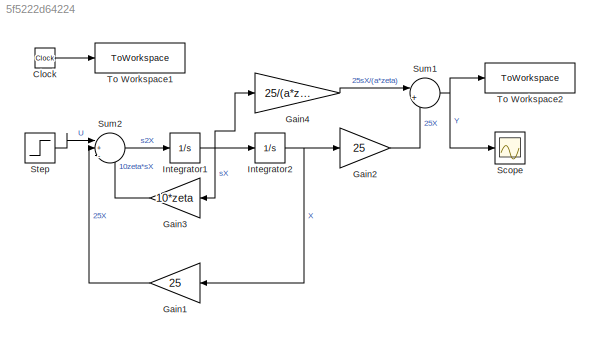
MODEL slx_5f5222d64224
KIND model
CONFIG AbsTol = auto
CONFIG EnableMultiTasking = off
CONFIG FixedStep = auto
CONFIG MaxStep = 0.001
CONFIG MinStep = auto
CONFIG RelTol = 1e-3
CONFIG SampleTimeConstraint = Unconstrained
CONFIG SolverName = ode45
CONFIG StartTime = 0.0
CONFIG StopTime = 3
WORKSPACE source: mxarray member
WORKSPACE a = 2.5
BLOCK [Clock] Clock
BLOCK [Gain] Gain1
  Gain = 25
BLOCK [Gain] Gain2
  Gain = 25
BLOCK [Gain] Gain3
  Gain = 10*zeta
BLOCK [Gain] Gain4
  Gain = 25/(a*zeta)
BLOCK [Integrator] Integrator1
  Ports = [1, 1]
BLOCK [Integrator] Integrator2
  Ports = [1, 1]
BLOCK [Scope] Scope
  Floating = off
  NumInputPorts = 1
  Ports = [1]
  ScopeSpecificationString = Simulink.scopes.TimeScopeBlockCfg('CurrentConfiguration', extmgr.ConfigurationSet(extmgr.Configuration('Core','General UI',true),extmgr.Configuration('Core','Source UI',true),extmgr.Configuration('Sources','WiredSimulink',true,'DataLogging',true,'DataLoggingSaveFormat','Array','DataLoggingVariableName','Scope','DataLoggingLimitDataPoints',true),extmgr.Configuration('Visuals','Time Domain',true,'Se...<+1473ch>
BLOCK [Step] Step
  SampleTime = 0
  Time = 0
BLOCK [Sum] Sum1
  Inputs = |++
  NameLocation = top
  Ports = [2, 1]
BLOCK [Sum] Sum2
  Inputs = |+--
  Ports = [3, 1]
BLOCK [ToWorkspace] To Workspace1
  FixptAsFi = on
  MaxDataPoints = inf
  Ports = [1]
  SampleTime = -1
  VariableName = toutModel
BLOCK [ToWorkspace] To Workspace2
  FixptAsFi = on
  MaxDataPoints = inf
  Ports = [1]
  SampleTime = -1
  VariableName = Yout
LINE Clock:1 -> To Workspace1:1
LINE Gain1:1 -> Sum2:2
LINE Gain2:1 -> Sum1:2
LINE Gain3:1 -> Sum2:3
LINE Gain4:1 -> Sum1:1
NET Integrator1:1 -> Gain3:1, Gain4:1, Integrator2:1
NET Integrator2:1 -> Gain1:1, Gain2:1
LINE Step:1 -> Sum2:1
NET Sum1:1 -> Scope:1, To Workspace2:1
LINE Sum2:1 -> Integrator1:1
note: NET lines group one-source signal fan-out (src -> all destinations, sorted); 1:1 wires keep LINE
